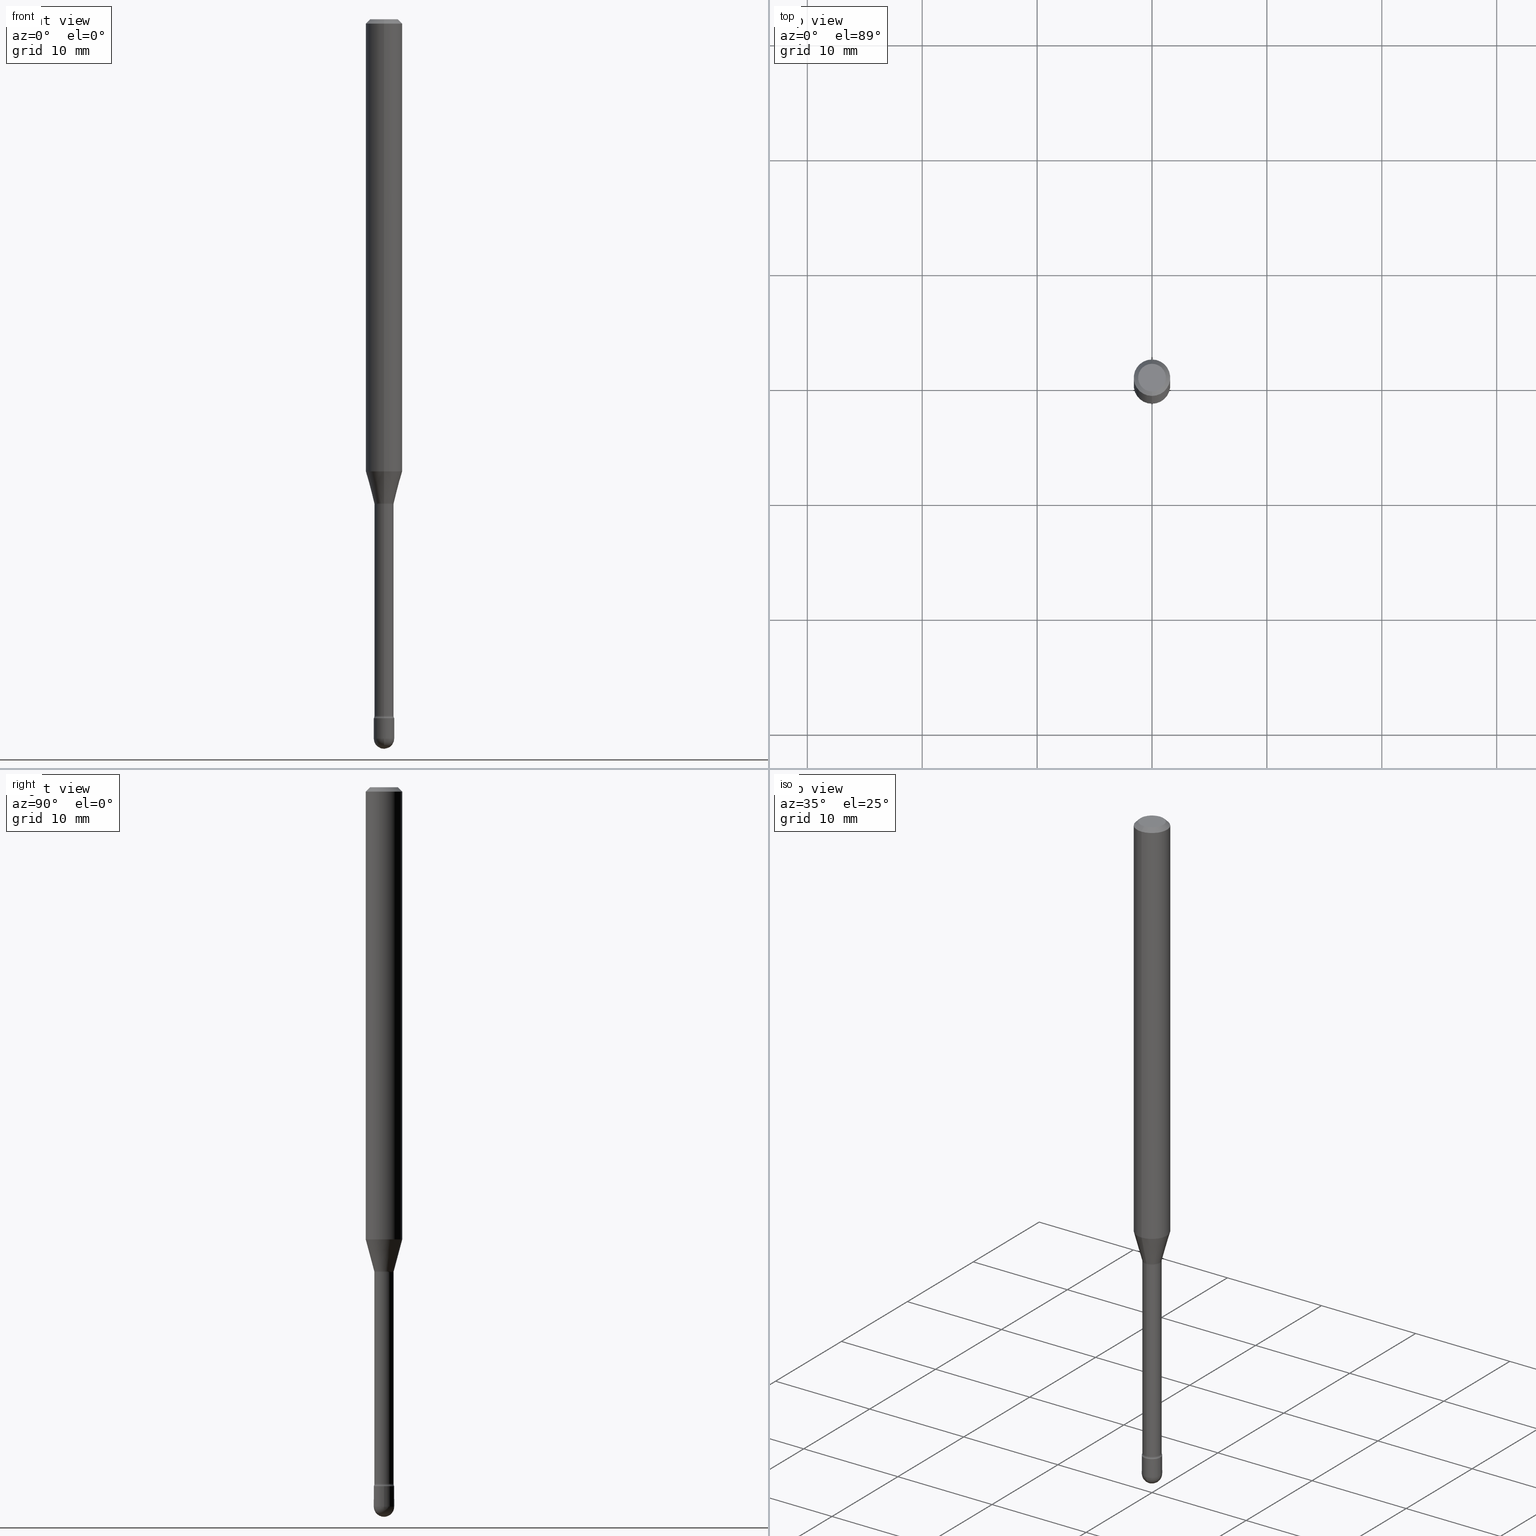
[diagram: canonical four-view strip — front | top / right | iso, engineering-drawing reading convention]
A machine part, canonical four-view strip (front | top / right | iso — engineering-drawing reading convention). The complete STEP part file that produces these views, byte-faithful:
ISO-10303-21;
HEADER;
FILE_DESCRIPTION (( 'STEP AP203' ),
    '1' );
FILE_NAME ('03901.STEP',
    '2024-04-09T21:03:07',
    ( '' ),
    ( '' ),
    'SwSTEP 2.0',
    'SolidWorks 2023',
    '' );
FILE_SCHEMA (( 'CONFIG_CONTROL_DESIGN' ));
ENDSEC;

DATA;
#1 = CARTESIAN_POINT ( 'NONE',  ( 3.668246001070409676E-31, -5.237160727982065186E-17, -0.01500000000000008271 ) ) ;
#2 = ORIENTED_EDGE ( 'NONE', *, *, #564, .F. ) ;
#3 = AXIS2_PLACEMENT_3D ( 'NONE', #226, #474, #356 ) ;
#4 = FACE_OUTER_BOUND ( 'NONE', #443, .T. ) ;
#5 = VERTEX_POINT ( 'NONE', #10 ) ;
#6 = EDGE_CURVE ( 'NONE', #183, #125, #526, .T. ) ;
#7 = CYLINDRICAL_SURFACE ( 'NONE', #113, 0.03500000000000000333 ) ;
#8 = ORIENTED_EDGE ( 'NONE', *, *, #414, .T. ) ;
#9 = CARTESIAN_POINT ( 'NONE',  ( -2.297394720958201714E-16, -0.03290000000000839475, -2.387345589506696175 ) ) ;
#10 = CARTESIAN_POINT ( 'NONE',  ( 2.486899575160936616E-16, 0.03499999999999166278, -2.395000000000000018 ) ) ;
#11 = CARTESIAN_POINT ( 'NONE',  ( 4.054860792723976153E-29, -5.789131289147861430E-15, -1.658092501787273410 ) ) ;
#12 = PRODUCT_DEFINITION_FORMATION_WITH_SPECIFIED_SOURCE ( 'ANY', '', #197, .NOT_KNOWN. ) ;
#13 = DIRECTION ( 'NONE',  ( 1.000000000000000000, -6.982962677686265922E-15, 4.876176775795936353E-29 ) ) ;
#14 = DIRECTION ( 'NONE',  ( 1.000000000000000000, -7.105427357601001070E-15, 4.926315008230735638E-29 ) ) ;
#15 = EDGE_LOOP ( 'NONE', ( #448, #452 ) ) ;
#16 = ADVANCED_FACE ( 'NONE', ( #106 ), #244, .T. ) ;
#17 = CARTESIAN_POINT ( 'NONE',  ( 3.789374653624952942E-29, -5.410096300461916682E-15, -1.549531296095961519 ) ) ;
#18 = CARTESIAN_POINT ( 'NONE',  ( 5.856966115042389501E-29, -8.361999962344650611E-15, -2.395000000000000018 ) ) ;
#19 = AXIS2_PLACEMENT_3D ( 'NONE', #546, #450, #100 ) ;
#20 = PERSON_AND_ORGANIZATION ( #313, #325 ) ;
#21 = AXIS2_PLACEMENT_3D ( 'NONE', #490, #375, #541 ) ;
#22 = LINE ( 'NONE', #293, #342 ) ;
#23 = EDGE_CURVE ( 'NONE', #374, #5, #294, .T. ) ;
#24 = DIRECTION ( 'NONE',  ( 1.000000000000000000, -6.982962677686276966E-15, 0.000000000000000000 ) ) ;
#25 = DATE_TIME_ROLE ( 'creation_date' ) ;
#26 = DIRECTION ( 'NONE',  ( -2.445497334046926588E-29, 3.491440485321357579E-15, 1.000000000000000000 ) ) ;
#27 = DIRECTION ( 'NONE',  ( -6.982962677686267499E-15, -1.000000000000000000, 0.000000000000000000 ) ) ;
#28 = FACE_OUTER_BOUND ( 'NONE', #376, .T. ) ;
#29 = VECTOR ( 'NONE', #55, 39.37007874015748143 ) ;
#30 = PERSON_AND_ORGANIZATION_ROLE ( 'creator' ) ;
#31 = CARTESIAN_POINT ( 'NONE',  ( -1.169113584055446105E-44, 1.669184350826100908E-30, 4.780733988912460139E-16 ) ) ;
#32 = DIRECTION ( 'NONE',  ( -2.445497334046926588E-29, 3.491440485321357579E-15, 1.000000000000000000 ) ) ;
#33 = CARTESIAN_POINT ( 'NONE',  ( 5.856966115042389501E-29, -8.361999962344650611E-15, -2.395000000000000018 ) ) ;
#34 = CIRCLE ( 'NONE', #370, 0.03500000000000000333 ) ;
#35 = ORIENTED_EDGE ( 'NONE', *, *, #534, .F. ) ;
#36 = APPROVAL_STATUS ( 'not_yet_approved' ) ;
#37 = EDGE_CURVE ( 'NONE', #438, #183, #76, .T. ) ;
#38 = CARTESIAN_POINT ( 'NONE',  ( 4.064307499408922751E-29, -5.802753956057700708E-15, -1.661974787463811332 ) ) ;
#39 = EDGE_LOOP ( 'NONE', ( #317, #230, #218, #44 ) ) ;
#40 = DIRECTION ( 'NONE',  ( 1.000000000000000000, -6.982962677686248567E-15, 0.000000000000000000 ) ) ;
#41 = ORIENTED_EDGE ( 'NONE', *, *, #98, .F. ) ;
#42 = DATE_AND_TIME ( #304, #500 ) ;
#43 = CARTESIAN_POINT ( 'NONE',  ( -2.297394720958783499E-16, -0.03290000000000003338, 5.929417908583188261E-16 ) ) ;
#44 = ORIENTED_EDGE ( 'NONE', *, *, #298, .F. ) ;
#45 = AXIS2_PLACEMENT_3D ( 'NONE', #204, #347, #67 ) ;
#46 = VECTOR ( 'NONE', #168, 39.37007874015748143 ) ;
#47 = DIRECTION ( 'NONE',  ( -6.982962677686266711E-15, -1.000000000000000000, 0.000000000000000000 ) ) ;
#48 = ADVANCED_FACE ( 'NONE', ( #154 ), #297, .T. ) ;
#49 = EDGE_LOOP ( 'NONE', ( #314, #495 ) ) ;
#50 = DIRECTION ( 'NONE',  ( -2.445468806185136597E-29, 3.491481338843145583E-15, 1.000000000000000000 ) ) ;
#51 = EDGE_LOOP ( 'NONE', ( #269, #456, #461, #502 ) ) ;
#52 = PLANE ( 'NONE',  #189 ) ;
#53 = VERTEX_POINT ( 'NONE', #378 ) ;
#54 = AXIS2_PLACEMENT_3D ( 'NONE', #137, #360, #484 ) ;
#55 = DIRECTION ( 'NONE',  ( -2.445468806185136877E-29, 3.491481338843145188E-15, 1.000000000000000000 ) ) ;
#56 = EDGE_CURVE ( 'NONE', #83, #221, #301, .T. ) ;
#57 = ORIENTED_EDGE ( 'NONE', *, *, #364, .F. ) ;
#58 = CARTESIAN_POINT ( 'NONE',  ( -0.03500000000000000333, 2.486899575160350887E-16, -1.721627281589217108E-30 ) ) ;
#59 = ORIENTED_EDGE ( 'NONE', *, *, #185, .F. ) ;
#60 = CARTESIAN_POINT ( 'NONE',  ( -3.344839122611314876E-16, -0.04790000000000579905, -1.661974787463811110 ) ) ;
#61 = CARTESIAN_POINT ( 'NONE',  ( 4.064354911995957945E-29, -5.802686058534508984E-15, -1.661974787463811332 ) ) ;
#62 = CIRCLE ( 'NONE', #159, 0.03341111260566397706 ) ;
#63 = VECTOR ( 'NONE', #115, 39.37007874015748854 ) ;
#64 = LOCAL_TIME ( 17, 3, 7.000000000000000000, #299 ) ;
#65 = FACE_OUTER_BOUND ( 'NONE', #273, .T. ) ;
#66 = PERSON_AND_ORGANIZATION_ROLE ( 'creator' ) ;
#67 = DIRECTION ( 'NONE',  ( 6.982962677686265922E-15, 1.000000000000000000, 0.000000000000000000 ) ) ;
#68 = ADVANCED_FACE ( 'NONE', ( #65 ), #303, .T. ) ;
#69 = APPROVAL_ROLE ( '' ) ;
#70 = CARTESIAN_POINT ( 'NONE',  ( -2.486899575159748395E-16, -0.03500000000000861450, -2.464999999999999858 ) ) ;
#71 = APPLICATION_CONTEXT ( 'configuration controlled 3d designs of mechanical parts and assemblies' ) ;
#72 = DIMENSIONAL_EXPONENTS ( 1.000000000000000000, 0.000000000000000000, 0.000000000000000000, 0.000000000000000000, 0.000000000000000000, 0.000000000000000000, 0.000000000000000000 ) ;
#73 = ADVANCED_FACE ( 'NONE', ( #341 ), #383, .T. ) ;
#74 = APPROVAL_STATUS ( 'not_yet_approved' ) ;
#75 = CARTESIAN_POINT ( 'NONE',  ( 4.054860792723976153E-29, -5.789131289147861430E-15, -1.658092501787273410 ) ) ;
#76 = CIRCLE ( 'NONE', #19, 0.03500000000000000333 ) ;
#77 = AXIS2_PLACEMENT_3D ( 'NONE', #11, #330, #47 ) ;
#78 = LINE ( 'NONE', #43, #46 ) ;
#79 = FACE_OUTER_BOUND ( 'NONE', #80, .T. ) ;
#80 = EDGE_LOOP ( 'NONE', ( #421, #91, #372, #305 ) ) ;
#81 = DIRECTION ( 'NONE',  ( -6.982962677686265922E-15, -1.000000000000000000, 3.491440485321357579E-15 ) ) ;
#82 = CLOSED_SHELL ( 'NONE', ( #225, #320, #550, #232, #68, #118, #517, #202, #242, #144, #527, #259, #73, #222 ) ) ;
#83 = VERTEX_POINT ( 'NONE', #557 ) ;
#84 = CIRCLE ( 'NONE', #498, 0.04749999999999999362 ) ;
#85 = CARTESIAN_POINT ( 'NONE',  ( -4.287811248607203282E-16, -0.06250000000000005551, -0.01499999999999986587 ) ) ;
#86 = ORIENTED_EDGE ( 'NONE', *, *, #458, .T. ) ;
#87 = APPROVAL_ROLE ( '' ) ;
#88 = DIRECTION ( 'NONE',  ( -2.445497334046926588E-29, 3.491440485321357579E-15, 1.000000000000000000 ) ) ;
#89 = ORIENTED_EDGE ( 'NONE', *, *, #56, .T. ) ;
#90 = DIRECTION ( 'NONE',  ( -6.982962677686266711E-15, -1.000000000000000000, 3.491440485321357973E-15 ) ) ;
#91 = ORIENTED_EDGE ( 'NONE', *, *, #460, .F. ) ;
#92 = VECTOR ( 'NONE', #346, 39.37007874015748143 ) ;
#93 = APPROVAL ( #203, 'UNSPECIFIED' ) ;
#94 = CIRCLE ( 'NONE', #178, 0.01500000000000002720 ) ;
#95 = APPROVAL_PERSON_ORGANIZATION ( #473, #193, #87 ) ;
#96 = DIRECTION ( 'NONE',  ( 1.000000000000000000, -6.982962677686248567E-15, 0.000000000000000000 ) ) ;
#97 = DIRECTION ( 'NONE',  ( -2.445497334046926588E-29, 3.491440485321357579E-15, 1.000000000000000000 ) ) ;
#98 = EDGE_CURVE ( 'NONE', #331, #143, #514, .T. ) ;
#99 = CARTESIAN_POINT ( 'NONE',  ( 0.03500000000000000333, -8.606501500248353382E-15, -2.395000000000000018 ) ) ;
#100 = DIRECTION ( 'NONE',  ( 1.000000000000000000, -6.982962677686248567E-15, 0.000000000000000000 ) ) ;
#101 = EDGE_CURVE ( 'NONE', #170, #83, #552, .T. ) ;
#102 = DIRECTION ( 'NONE',  ( -2.445468806185136597E-29, 3.491481338843145583E-15, 1.000000000000000000 ) ) ;
#103 = EDGE_LOOP ( 'NONE', ( #363, #566, #138, #404 ) ) ;
#104 = VECTOR ( 'NONE', #287, 39.37007874015748854 ) ;
#105 = CARTESIAN_POINT ( 'NONE',  ( -4.364351673553916201E-16, -0.06250000000000000000, 6.962884292238308873E-16 ) ) ;
#106 = FACE_OUTER_BOUND ( 'NONE', #475, .T. ) ;
#107 = APPLICATION_PROTOCOL_DEFINITION ( 'international standard', 'config_control_design', 1994, #153 ) ;
#108 = EDGE_CURVE ( 'NONE', #409, #488, #22, .T. ) ;
#109 = EDGE_LOOP ( 'NONE', ( #195, #263, #543, #41 ) ) ;
#110 = PERSON_AND_ORGANIZATION ( #313, #325 ) ;
#111 = PLANE ( 'NONE',  #454 ) ;
#112 =( LENGTH_UNIT ( ) NAMED_UNIT ( * ) SI_UNIT ( $, .METRE. ) );
#113 = AXIS2_PLACEMENT_3D ( 'NONE', #369, #50, #412 ) ;
#114 = CARTESIAN_POINT ( 'NONE',  ( 5.856897790813402508E-29, -8.362097806529333416E-15, -2.395000000000000018 ) ) ;
#115 = DIRECTION ( 'NONE',  ( -1.807323732225325406E-15, -0.2588190451025175198, 0.9659258262890690894 ) ) ;
#116 = DIRECTION ( 'NONE',  ( -6.982962677686266711E-15, -1.000000000000000000, 0.000000000000000000 ) ) ;
#117 = EDGE_CURVE ( 'NONE', #221, #83, #214, .T. ) ;
#118 = ADVANCED_FACE ( 'NONE', ( #119 ), #176, .T. ) ;
#119 = FACE_OUTER_BOUND ( 'NONE', #491, .T. ) ;
#120 = MANIFOLD_SOLID_BREP ( 'Body-Move/Copy2[1]', #167 ) ;
#121 = CARTESIAN_POINT ( 'NONE',  ( 4.364351673553919652E-16, 0.06249999999999995143, -0.01500000000000030129 ) ) ;
#122 = TOROIDAL_SURFACE ( 'NONE', #216, 0.04789999999999999813, 0.01500000000000002373 ) ;
#123 = DIRECTION ( 'NONE',  ( 6.982962677686265922E-15, 1.000000000000000000, 0.000000000000000000 ) ) ;
#124 = EDGE_CURVE ( 'NONE', #241, #146, #62, .T. ) ;
#125 = VERTEX_POINT ( 'NONE', #70 ) ;
#126 = CC_DESIGN_PERSON_AND_ORGANIZATION_ASSIGNMENT ( #252, #248, ( #197 ) ) ;
#127 = COORDINATED_UNIVERSAL_TIME_OFFSET ( 5, 0, .BEHIND. ) ;
#128 = DIRECTION ( 'NONE',  ( 2.445497334046926588E-29, -3.491440485321357579E-15, -1.000000000000000000 ) ) ;
#129 = ORIENTED_EDGE ( 'NONE', *, *, #279, .T. ) ;
#130 = CYLINDRICAL_SURFACE ( 'NONE', #516, 0.06250000000000000000 ) ;
#131 = AXIS2_PLACEMENT_3D ( 'NONE', #385, #511, #365 ) ;
#132 = ORIENTED_EDGE ( 'NONE', *, *, #37, .T. ) ;
#133 = PRODUCT_DEFINITION_SHAPE ( 'NONE', 'NONE',  #308 ) ;
#134 = SECURITY_CLASSIFICATION_LEVEL ( 'unclassified' ) ;
#135 = DIRECTION ( 'NONE',  ( -1.000000000000000000, 7.105427357601001070E-15, -4.926315508542082329E-29 ) ) ;
#136 = ORIENTED_EDGE ( 'NONE', *, *, #124, .T. ) ;
#137 = CARTESIAN_POINT ( 'NONE',  ( 6.028080607246362204E-29, -8.606501500248354960E-15, -2.464999999999999858 ) ) ;
#138 = ORIENTED_EDGE ( 'NONE', *, *, #219, .F. ) ;
#139 = DIRECTION ( 'NONE',  ( -2.445497334046926869E-29, 3.491440485321357184E-15, 1.000000000000000000 ) ) ;
#140 = DIRECTION ( 'NONE',  ( -2.445468806185136597E-29, 3.491481338843145583E-15, 1.000000000000000000 ) ) ;
#141 = AXIS2_PLACEMENT_3D ( 'NONE', #173, #32, #529 ) ;
#142 = LINE ( 'NONE', #58, #29 ) ;
#143 = VERTEX_POINT ( 'NONE', #381 ) ;
#144 = ADVANCED_FACE ( 'NONE', ( #258 ), #164, .F. ) ;
#145 = DIRECTION ( 'NONE',  ( -2.445497334046926588E-29, 3.491440485321357579E-15, 1.000000000000000000 ) ) ;
#146 = VERTEX_POINT ( 'NONE', #505 ) ;
#147 = DIRECTION ( 'NONE',  ( 1.000000000000000000, -6.982962677686276966E-15, 0.000000000000000000 ) ) ;
#148 = CARTESIAN_POINT ( 'NONE',  ( 6.028080607246362204E-29, -8.606501500248354960E-15, -2.464999999999999858 ) ) ;
#149 = VECTOR ( 'NONE', #507, 39.37007874015748143 ) ;
#150 = CIRCLE ( 'NONE', #408, 0.03500000000000001721 ) ;
#151 = ADVANCED_FACE ( 'NONE', ( #28 ), #111, .T. ) ;
#152 = CALENDAR_DATE ( 2024, 9, 4 ) ;
#153 = APPLICATION_CONTEXT ( 'configuration controlled 3d designs of mechanical parts and assemblies' ) ;
#154 = FACE_OUTER_BOUND ( 'NONE', #103, .T. ) ;
#155 = DIRECTION ( 'NONE',  ( 1.000000000000000000, 0.000000000000000000, 0.000000000000000000 ) ) ;
#156 = DIRECTION ( 'NONE',  ( -2.438088387897960049E-29, 3.491481338843145188E-15, 1.000000000000000000 ) ) ;
#157 = CARTESIAN_POINT ( 'NONE',  ( 0.000000000000000000, 0.000000000000000000, 0.000000000000000000 ) ) ;
#158 = DIRECTION ( 'NONE',  ( -6.982962677686265922E-15, -1.000000000000000000, 3.491440485321357973E-15 ) ) ;
#159 = AXIS2_PLACEMENT_3D ( 'NONE', #556, #245, #212 ) ;
#160 = AXIS2_PLACEMENT_3D ( 'NONE', #523, #175, #311 ) ;
#161 = EDGE_CURVE ( 'NONE', #53, #331, #310, .T. ) ;
#162 = DIRECTION ( 'NONE',  ( 6.982962677686265922E-15, 1.000000000000000000, -3.491440485321357184E-15 ) ) ;
#163 = MECHANICAL_CONTEXT ( 'NONE', #153, 'mechanical' ) ;
#164 = PLANE ( 'NONE',  #537 ) ;
#165 = ORIENTED_EDGE ( 'NONE', *, *, #390, .T. ) ;
#166 = DIRECTION ( 'NONE',  ( -2.445468806185136877E-29, 3.491481338843145188E-15, 1.000000000000000000 ) ) ;
#167 = CLOSED_SHELL ( 'NONE', ( #16, #206, #151, #48, #340 ) ) ;
#168 = DIRECTION ( 'NONE',  ( -2.445497334046926869E-29, 3.491440485321357184E-15, 1.000000000000000000 ) ) ;
#169 = CONICAL_SURFACE ( 'NONE', #77, 0.03341111260566397706, 0.2617993877991495744 ) ;
#170 = VERTEX_POINT ( 'NONE', #470 ) ;
#171 = FACE_OUTER_BOUND ( 'NONE', #109, .T. ) ;
#172 = ORIENTED_EDGE ( 'NONE', *, *, #424, .F. ) ;
#173 = CARTESIAN_POINT ( 'NONE',  ( 4.064307499408922751E-29, -5.802753956057700708E-15, -1.661974787463811332 ) ) ;
#174 = VERTEX_POINT ( 'NONE', #296 ) ;
#175 = DIRECTION ( 'NONE',  ( 1.000000000000000000, -7.105427357601001070E-15, 4.926315008230735638E-29 ) ) ;
#176 = CONICAL_SURFACE ( 'NONE', #416, 0.03341111260566397706, 0.2617993877991495744 ) ;
#177 = ORIENTED_EDGE ( 'NONE', *, *, #414, .F. ) ;
#178 = AXIS2_PLACEMENT_3D ( 'NONE', #319, #410, #446 ) ;
#179 = SECURITY_CLASSIFICATION ( '', '', #134 ) ;
#180 = CARTESIAN_POINT ( 'NONE',  ( 5.838179168722291637E-29, -8.335372575132118350E-15, -2.387345589506696175 ) ) ;
#181 = ORIENTED_EDGE ( 'NONE', *, *, #37, .F. ) ;
#182 = DIRECTION ( 'NONE',  ( -6.982962677686265922E-15, -1.000000000000000000, 3.491440485321357184E-15 ) ) ;
#183 = VERTEX_POINT ( 'NONE', #467 ) ;
#184 = EDGE_CURVE ( 'NONE', #267, #488, #34, .T. ) ;
#185 = EDGE_CURVE ( 'NONE', #271, #255, #439, .T. ) ;
#186 = LINE ( 'NONE', #539, #295 ) ;
#187 = ORIENTED_EDGE ( 'NONE', *, *, #219, .T. ) ;
#188 = AXIS2_PLACEMENT_3D ( 'NONE', #429, #26, #207 ) ;
#189 = AXIS2_PLACEMENT_3D ( 'NONE', #373, #229, #182 ) ;
#190 = DIRECTION ( 'NONE',  ( -2.445497334046926588E-29, 3.491440485321357579E-15, 1.000000000000000000 ) ) ;
#191 = ORIENTED_EDGE ( 'NONE', *, *, #231, .T. ) ;
#192 = ADVANCED_BREP_SHAPE_REPRESENTATION ( '03901', ( #120, #318, #509 ), #286 ) ;
#193 = APPROVAL ( #36, 'UNSPECIFIED' ) ;
#194 = CARTESIAN_POINT ( 'NONE',  ( 3.840629472727447874E-16, 0.04749999999999999362, -2.485923956665947867E-16 ) ) ;
#195 = ORIENTED_EDGE ( 'NONE', *, *, #161, .F. ) ;
#196 = EDGE_CURVE ( 'NONE', #143, #174, #237, .T. ) ;
#197 = PRODUCT ( '03901', '03901', '', ( #163 ) ) ;
#198 = CARTESIAN_POINT ( 'NONE',  ( 5.838247274587313362E-29, -8.335275043657060680E-15, -2.387345589506696175 ) ) ;
#199 = ORIENTED_EDGE ( 'NONE', *, *, #390, .F. ) ;
#200 = CIRCLE ( 'NONE', #545, 0.03500000000000000333 ) ;
#201 = DIRECTION ( 'NONE',  ( -2.445497334046926588E-29, 3.491440485321357579E-15, 1.000000000000000000 ) ) ;
#202 = ADVANCED_FACE ( 'NONE', ( #559 ), #130, .T. ) ;
#203 = APPROVAL_STATUS ( 'not_yet_approved' ) ;
#204 = CARTESIAN_POINT ( 'NONE',  ( 6.028080607246362204E-29, -8.606501500248354960E-15, -2.464999999999999858 ) ) ;
#205 = UNCERTAINTY_MEASURE_WITH_UNIT (LENGTH_MEASURE( 1.000000000000000082E-05 ), #547, 'distance_accuracy_value', 'NONE');
#206 = ADVANCED_FACE ( 'NONE', ( #401 ), #518, .T. ) ;
#207 = DIRECTION ( 'NONE',  ( -6.982962677686265922E-15, -1.000000000000000000, 4.370956789862821150E-15 ) ) ;
#208 =( NAMED_UNIT ( * ) SI_UNIT ( $, .STERADIAN. ) SOLID_ANGLE_UNIT ( ) );
#209 = TOROIDAL_SURFACE ( 'NONE', #228, 0.04790000000000008834, 0.01500000000000002547 ) ;
#210 = DIRECTION ( 'NONE',  ( -2.445497334046926588E-29, 3.491440485321357579E-15, 1.000000000000000000 ) ) ;
#211 = FACE_OUTER_BOUND ( 'NONE', #51, .T. ) ;
#212 = DIRECTION ( 'NONE',  ( -6.982962677686266711E-15, -1.000000000000000000, 0.000000000000000000 ) ) ;
#213 = CARTESIAN_POINT ( 'NONE',  ( -0.03500000000000000333, -8.235609695872808902E-15, -2.395000000000000018 ) ) ;
#214 = CIRCLE ( 'NONE', #463, 0.03289999999999999869 ) ;
#215 = CC_DESIGN_PERSON_AND_ORGANIZATION_ASSIGNMENT ( #400, #315, ( #12 ) ) ;
#216 = AXIS2_PLACEMENT_3D ( 'NONE', #38, #223, #354 ) ;
#217 = LOCAL_TIME ( 17, 3, 7.000000000000000000, #127 ) ;
#218 = ORIENTED_EDGE ( 'NONE', *, *, #117, .F. ) ;
#219 = EDGE_CURVE ( 'NONE', #409, #438, #200, .T. ) ;
#220 = CARTESIAN_POINT ( 'NONE',  ( 4.440892098501002843E-16, 0.06249999999999455991, -1.549531296095961963 ) ) ;
#221 = VERTEX_POINT ( 'NONE', #562 ) ;
#222 = ADVANCED_FACE ( 'NONE', ( #262 ), #464, .F. ) ;
#223 = DIRECTION ( 'NONE',  ( -2.445497334046926588E-29, 3.491440485321357579E-15, 1.000000000000000000 ) ) ;
#224 = EDGE_LOOP ( 'NONE', ( #234, #328, #525, #357 ) ) ;
#225 = ADVANCED_FACE ( 'NONE', ( #4 ), #122, .F. ) ;
#226 = CARTESIAN_POINT ( 'NONE',  ( 3.668246001070409676E-31, -5.237160727982065186E-17, -0.01500000000000008271 ) ) ;
#227 = EDGE_LOOP ( 'NONE', ( #355, #276, #418, #482 ) ) ;
#228 = AXIS2_PLACEMENT_3D ( 'NONE', #180, #440, #81 ) ;
#229 = DIRECTION ( 'NONE',  ( -2.445497334046926308E-29, 3.491440485321357184E-15, 1.000000000000000000 ) ) ;
#230 = ORIENTED_EDGE ( 'NONE', *, *, #101, .T. ) ;
#231 = EDGE_CURVE ( 'NONE', #398, #125, #150, .T. ) ;
#232 = ADVANCED_FACE ( 'NONE', ( #171 ), #302, .T. ) ;
#233 = DIRECTION ( 'NONE',  ( -2.445468806185136597E-29, 3.491481338843145583E-15, 1.000000000000000000 ) ) ;
#234 = ORIENTED_EDGE ( 'NONE', *, *, #279, .F. ) ;
#235 = CARTESIAN_POINT ( 'NONE',  ( 6.115168556468905002E-29, -8.726560215209356888E-15, -2.500000000000000000 ) ) ;
#236 = ORIENTED_EDGE ( 'NONE', *, *, #444, .F. ) ;
#237 = CIRCLE ( 'NONE', #131, 0.06250000000000000000 ) ;
#238 = VECTOR ( 'NONE', #139, 39.37007874015748143 ) ;
#239 = DIRECTION ( 'NONE',  ( -2.445497334046926869E-29, 3.491440485321357184E-15, 1.000000000000000000 ) ) ;
#240 = EDGE_CURVE ( 'NONE', #5, #374, #371, .T. ) ;
#241 = VERTEX_POINT ( 'NONE', #316 ) ;
#242 = ADVANCED_FACE ( 'NONE', ( #79 ), #538, .T. ) ;
#243 = CARTESIAN_POINT ( 'NONE',  ( 0.03500000000000000333, -8.728703347107863365E-15, -2.464999999999999858 ) ) ;
#244 = CYLINDRICAL_SURFACE ( 'NONE', #553, 0.03500000000000000333 ) ;
#245 = DIRECTION ( 'NONE',  ( -2.445497334046926588E-29, 3.491440485321357579E-15, 1.000000000000000000 ) ) ;
#246 = AXIS2_PLACEMENT_3D ( 'NONE', #148, #499, #493 ) ;
#247 = AXIS2_PLACEMENT_3D ( 'NONE', #322, #145, #415 ) ;
#248 = PERSON_AND_ORGANIZATION_ROLE ( 'design_owner' ) ;
#249 = DIRECTION ( 'NONE',  ( -6.982962677686266711E-15, -1.000000000000000000, 3.491440485321357973E-15 ) ) ;
#250 = DIRECTION ( 'NONE',  ( 7.105427357600997914E-15, 1.000000000000000000, 0.000000000000000000 ) ) ;
#251 = DIRECTION ( 'NONE',  ( -2.445497334046926588E-29, 3.491440485321357579E-15, 1.000000000000000000 ) ) ;
#252 = PERSON_AND_ORGANIZATION ( #313, #325 ) ;
#253 = CARTESIAN_POINT ( 'NONE',  ( 4.064354911995957945E-29, -5.802686058534508984E-15, -1.661974787463811332 ) ) ;
#254 = CC_DESIGN_DATE_AND_TIME_ASSIGNMENT ( #264, #483, ( #179 ) ) ;
#255 = VERTEX_POINT ( 'NONE', #403 ) ;
#256 = APPLICATION_PROTOCOL_DEFINITION ( 'international standard', 'config_control_design', 1994, #71 ) ;
#257 = CIRCLE ( 'NONE', #447, 0.03500000000000000333 ) ;
#258 = FACE_OUTER_BOUND ( 'NONE', #49, .T. ) ;
#259 = ADVANCED_FACE ( 'NONE', ( #531 ), #209, .F. ) ;
#260 = CARTESIAN_POINT ( 'NONE',  ( 6.028080607246362204E-29, -8.606501500248354960E-15, -2.464999999999999858 ) ) ;
#261 = CC_DESIGN_DATE_AND_TIME_ASSIGNMENT ( #389, #25, ( #308 ) ) ;
#262 = FACE_OUTER_BOUND ( 'NONE', #224, .T. ) ;
#263 = ORIENTED_EDGE ( 'NONE', *, *, #288, .T. ) ;
#264 = DATE_AND_TIME ( #359, #217 ) ;
#265 = AXIS2_PLACEMENT_3D ( 'NONE', #395, #468, #513 ) ;
#266 = CARTESIAN_POINT ( 'NONE',  ( -1.169113584055446105E-44, 1.669184350826100908E-30, 4.780733988912460139E-16 ) ) ;
#267 = VERTEX_POINT ( 'NONE', #213 ) ;
#268 = DIRECTION ( 'NONE',  ( -2.445468806185136597E-29, 3.491481338843145583E-15, 1.000000000000000000 ) ) ;
#269 = ORIENTED_EDGE ( 'NONE', *, *, #332, .F. ) ;
#270 = DIRECTION ( 'NONE',  ( 6.982962677686265922E-15, 1.000000000000000000, -3.483106191921935554E-15 ) ) ;
#271 = VERTEX_POINT ( 'NONE', #220 ) ;
#272 = CARTESIAN_POINT ( 'NONE',  ( -2.444036937189609493E-16, -0.03500000000000837858, -2.395000000000000018 ) ) ;
#273 = EDGE_LOOP ( 'NONE', ( #324, #8, #278, #172 ) ) ;
#274 = CIRCLE ( 'NONE', #54, 0.03500000000000001721 ) ;
#275 = DIRECTION ( 'NONE',  ( -2.445497334046926588E-29, 3.491440485321357579E-15, 1.000000000000000000 ) ) ;
#276 = ORIENTED_EDGE ( 'NONE', *, *, #332, .T. ) ;
#277 = FACE_OUTER_BOUND ( 'NONE', #459, .T. ) ;
#278 = ORIENTED_EDGE ( 'NONE', *, *, #524, .F. ) ;
#279 = EDGE_CURVE ( 'NONE', #241, #83, #312, .T. ) ;
#280 = DIRECTION ( 'NONE',  ( -2.445497334046926588E-29, 3.491440485321357579E-15, 1.000000000000000000 ) ) ;
#281 = ORIENTED_EDGE ( 'NONE', *, *, #392, .F. ) ;
#282 = LOCAL_TIME ( 17, 3, 7.000000000000000000, #380 ) ;
#283 = AXIS2_PLACEMENT_3D ( 'NONE', #300, #339, #249 ) ;
#284 = AXIS2_PLACEMENT_3D ( 'NONE', #198, #544, #535 ) ;
#285 = EDGE_CURVE ( 'NONE', #398, #438, #274, .T. ) ;
#286 =( GEOMETRIC_REPRESENTATION_CONTEXT ( 3 ) GLOBAL_UNCERTAINTY_ASSIGNED_CONTEXT ( ( #205 ) ) GLOBAL_UNIT_ASSIGNED_CONTEXT ( ( #547, #510, #208 ) ) REPRESENTATION_CONTEXT ( 'NONE', 'WORKASPACE' ) );
#287 = DIRECTION ( 'NONE',  ( 1.839019923739595582E-15, 0.2588190451025242922, 0.9659258262890673130 ) ) ;
#288 = EDGE_CURVE ( 'NONE', #53, #174, #481, .T. ) ;
#289 = CARTESIAN_POINT ( 'NONE',  ( 0.000000000000000000, 0.000000000000000000, 0.000000000000000000 ) ) ;
#290 = APPROVAL_DATE_TIME ( #336, #326 ) ;
#291 = EDGE_LOOP ( 'NONE', ( #35, #337, #86, #352 ) ) ;
#292 = DIRECTION ( 'NONE',  ( -2.445497334046926588E-29, 3.491440485321357579E-15, 1.000000000000000000 ) ) ;
#293 = CARTESIAN_POINT ( 'NONE',  ( 0.03500000000000000333, -2.444036937190193250E-16, 1.706661871528577808E-30 ) ) ;
#294 = CIRCLE ( 'NONE', #388, 0.03500000000000000333 ) ;
#295 = VECTOR ( 'NONE', #239, 39.37007874015748143 ) ;
#296 = CARTESIAN_POINT ( 'NONE',  ( -4.364351673553912750E-16, -0.06250000000000005551, -0.01499999999999986587 ) ) ;
#297 = SPHERICAL_SURFACE ( 'NONE', #45, 0.03500000000000001721 ) ;
#298 = EDGE_CURVE ( 'NONE', #368, #221, #78, .T. ) ;
#299 = COORDINATED_UNIVERSAL_TIME_OFFSET ( 5, 0, .BEHIND. ) ;
#300 = CARTESIAN_POINT ( 'NONE',  ( 2.023760303340932204E-45, -2.888935821206575184E-31, -8.274897261383033720E-17 ) ) ;
#301 = CIRCLE ( 'NONE', #348, 0.03289999999999999869 ) ;
#302 = CONICAL_SURFACE ( 'NONE', #3, 0.06250000000000000000, 0.7853981633974483900 ) ;
#303 = CYLINDRICAL_SURFACE ( 'NONE', #426, 0.06250000000000000000 ) ;
#304 = CALENDAR_DATE ( 2024, 9, 4 ) ;
#305 = ORIENTED_EDGE ( 'NONE', *, *, #196, .T. ) ;
#306 = DIRECTION ( 'NONE',  ( -6.982962677686265922E-15, -1.000000000000000000, 0.000000000000000000 ) ) ;
#307 = EDGE_LOOP ( 'NONE', ( #57, #413, #540, #536, #406 ) ) ;
#308 = PRODUCT_DEFINITION ( 'UNKNOWN', '', #12, #533 ) ;
#309 = CC_DESIGN_SECURITY_CLASSIFICATION ( #179, ( #12 ) ) ;
#310 = CIRCLE ( 'NONE', #283, 0.04749999999999999362 ) ;
#311 = DIRECTION ( 'NONE',  ( 7.105427357601001859E-15, 1.000000000000000000, 0.000000000000000000 ) ) ;
#312 = CIRCLE ( 'NONE', #160, 0.01500000000000001853 ) ;
#313 = PERSON ( 'UNSPECIFIED', 'UNSPECIFIED', 'UNSPECIFIED', ('UNSPECIFIED'), ('UNSPECIFIED'), ('UNSPECIFIED') ) ;
#314 = ORIENTED_EDGE ( 'NONE', *, *, #460, .T. ) ;
#315 = PERSON_AND_ORGANIZATION_ROLE ( 'design_supplier' ) ;
#316 = CARTESIAN_POINT ( 'NONE',  ( 3.407447217031568368E-16, 0.03341111260565819002, -1.658092501787273410 ) ) ;
#317 = ORIENTED_EDGE ( 'NONE', *, *, #430, .T. ) ;
#318 = MANIFOLD_SOLID_BREP ( 'Body-Move/Copy2[2]', #82 ) ;
#319 = CARTESIAN_POINT ( 'NONE',  ( -3.344839122611144285E-16, -0.04790000000000842195, -2.387345589506695731 ) ) ;
#320 = ADVANCED_FACE ( 'NONE', ( #351 ), #477, .T. ) ;
#321 = ORIENTED_EDGE ( 'NONE', *, *, #6, .F. ) ;
#322 = CARTESIAN_POINT ( 'NONE',  ( 5.838247274587313362E-29, -8.335275043657060680E-15, -2.387345589506696175 ) ) ;
#323 = CIRCLE ( 'NONE', #247, 0.03290000000000006114 ) ;
#324 = ORIENTED_EDGE ( 'NONE', *, *, #444, .T. ) ;
#325 = ORGANIZATION ( 'UNSPECIFIED', 'UNSPECIFIED', '' ) ;
#326 = APPROVAL ( #74, 'UNSPECIFIED' ) ;
#327 = CARTESIAN_POINT ( 'NONE',  ( 2.444036937190796729E-16, 0.03499999999999140604, -2.464999999999999858 ) ) ;
#328 = ORIENTED_EDGE ( 'NONE', *, *, #386, .F. ) ;
#329 = EDGE_CURVE ( 'NONE', #125, #409, #257, .T. ) ;
#330 = DIRECTION ( 'NONE',  ( -2.445497334046926588E-29, 3.491440485321357579E-15, 1.000000000000000000 ) ) ;
#331 = VERTEX_POINT ( 'NONE', #194 ) ;
#332 = EDGE_CURVE ( 'NONE', #170, #368, #528, .T. ) ;
#333 = CARTESIAN_POINT ( 'NONE',  ( 5.856897790813402508E-29, -8.362097806529333416E-15, -2.395000000000000018 ) ) ;
#334 = ORIENTED_EDGE ( 'NONE', *, *, #196, .F. ) ;
#335 = TOROIDAL_SURFACE ( 'NONE', #417, 0.04790000000000008834, 0.01500000000000002547 ) ;
#336 = DATE_AND_TIME ( #506, #64 ) ;
#337 = ORIENTED_EDGE ( 'NONE', *, *, #430, .F. ) ;
#338 = CALENDAR_DATE ( 2024, 9, 4 ) ;
#339 = DIRECTION ( 'NONE',  ( -2.445497334046926588E-29, 3.491440485321357579E-15, 1.000000000000000000 ) ) ;
#340 = ADVANCED_FACE ( 'NONE', ( #453 ), #7, .T. ) ;
#341 = FACE_OUTER_BOUND ( 'NONE', #227, .T. ) ;
#342 = VECTOR ( 'NONE', #166, 39.37007874015748143 ) ;
#343 = CIRCLE ( 'NONE', #554, 0.06250000000000000000 ) ;
#344 = DIRECTION ( 'NONE',  ( -2.445468806185136597E-29, 3.491481338843145583E-15, 1.000000000000000000 ) ) ;
#345 = PERSON_AND_ORGANIZATION ( #313, #325 ) ;
#346 = DIRECTION ( 'NONE',  ( 4.937700262164548042E-15, 0.7071067811865451302, -0.7071067811865499042 ) ) ;
#347 = DIRECTION ( 'NONE',  ( -1.000000000000000000, 6.982962677686265922E-15, -4.883557194083112340E-29 ) ) ;
#348 = AXIS2_PLACEMENT_3D ( 'NONE', #253, #201, #116 ) ;
#349 = AXIS2_PLACEMENT_3D ( 'NONE', #333, #102, #147 ) ;
#350 = APPROVAL_DATE_TIME ( #42, #193 ) ;
#351 = FACE_OUTER_BOUND ( 'NONE', #39, .T. ) ;
#352 = ORIENTED_EDGE ( 'NONE', *, *, #23, .T. ) ;
#353 = SHAPE_DEFINITION_REPRESENTATION ( #133, #192 ) ;
#354 = DIRECTION ( 'NONE',  ( -6.982962677686265133E-15, -1.000000000000000000, 3.491440485321357579E-15 ) ) ;
#355 = ORIENTED_EDGE ( 'NONE', *, *, #101, .F. ) ;
#356 = DIRECTION ( 'NONE',  ( 6.982962677686265922E-15, 1.000000000000000000, -3.483106191921935554E-15 ) ) ;
#357 = ORIENTED_EDGE ( 'NONE', *, *, #117, .T. ) ;
#358 = CC_DESIGN_APPROVAL ( #326, ( #12 ) ) ;
#359 = CALENDAR_DATE ( 2024, 9, 4 ) ;
#360 = DIRECTION ( 'NONE',  ( 1.000000000000000000, -6.982962677686265922E-15, 4.883557194083112340E-29 ) ) ;
#361 = CIRCLE ( 'NONE', #21, 0.03341111260566397706 ) ;
#362 = APPROVAL_PERSON_ORGANIZATION ( #20, #93, #69 ) ;
#363 = ORIENTED_EDGE ( 'NONE', *, *, #231, .F. ) ;
#364 = EDGE_CURVE ( 'NONE', #183, #267, #142, .T. ) ;
#365 = DIRECTION ( 'NONE',  ( -6.982962677686265922E-15, -1.000000000000000000, 3.483106191921935554E-15 ) ) ;
#366 = ORIENTED_EDGE ( 'NONE', *, *, #285, .F. ) ;
#367 = CARTESIAN_POINT ( 'NONE',  ( 3.403499704291468938E-16, 0.04789999999999175473, -2.387345589506696619 ) ) ;
#368 = VERTEX_POINT ( 'NONE', #9 ) ;
#369 = CARTESIAN_POINT ( 'NONE',  ( 0.000000000000000000, 0.000000000000000000, 0.000000000000000000 ) ) ;
#370 = AXIS2_PLACEMENT_3D ( 'NONE', #428, #344, #24 ) ;
#371 = CIRCLE ( 'NONE', #455, 0.03500000000000000333 ) ;
#372 = ORIENTED_EDGE ( 'NONE', *, *, #98, .T. ) ;
#373 = CARTESIAN_POINT ( 'NONE',  ( 2.444036937190778979E-16, 0.03499999999999164196, -2.395000000000000018 ) ) ;
#374 = VERTEX_POINT ( 'NONE', #272 ) ;
#375 = DIRECTION ( 'NONE',  ( -2.445497334046926588E-29, 3.491440485321357579E-15, 1.000000000000000000 ) ) ;
#376 = EDGE_LOOP ( 'NONE', ( #165, #563 ) ) ;
#377 = DIRECTION ( 'NONE',  ( -6.982962677686265922E-15, -1.000000000000000000, 4.370956789862821150E-15 ) ) ;
#378 = CARTESIAN_POINT ( 'NONE',  ( -3.773273898774340269E-16, -0.04749999999999999362, 8.309445043893412462E-17 ) ) ;
#379 = AXIS2_PLACEMENT_3D ( 'NONE', #266, #280, #457 ) ;
#380 = COORDINATED_UNIVERSAL_TIME_OFFSET ( 5, 0, .BEHIND. ) ;
#381 = CARTESIAN_POINT ( 'NONE',  ( 4.440892098501006787E-16, 0.06249999999999995143, -0.01500000000000030129 ) ) ;
#382 = DATE_AND_TIME ( #338, #282 ) ;
#383 = CYLINDRICAL_SURFACE ( 'NONE', #265, 0.03290000000000003338 ) ;
#384 = CARTESIAN_POINT ( 'NONE',  ( 5.838179168722291637E-29, -8.335372575132118350E-15, -2.387345589506696175 ) ) ;
#385 = CARTESIAN_POINT ( 'NONE',  ( 3.668246001070409676E-31, -5.237160727982065186E-17, -0.01500000000000008271 ) ) ;
#386 = EDGE_CURVE ( 'NONE', #146, #241, #361, .T. ) ;
#387 = CC_DESIGN_APPROVAL ( #193, ( #179 ) ) ;
#388 = AXIS2_PLACEMENT_3D ( 'NONE', #18, #97, #423 ) ;
#389 = DATE_AND_TIME ( #152, #465 ) ;
#390 = EDGE_CURVE ( 'NONE', #488, #267, #433, .T. ) ;
#391 = DIRECTION ( 'NONE',  ( -6.982962677686266711E-15, -1.000000000000000000, 0.000000000000000000 ) ) ;
#392 = EDGE_CURVE ( 'NONE', #241, #271, #492, .T. ) ;
#393 = CC_DESIGN_PERSON_AND_ORGANIZATION_ASSIGNMENT ( #472, #396, ( #179 ) ) ;
#394 = COORDINATED_UNIVERSAL_TIME_OFFSET ( 5, 0, .BEHIND. ) ;
#395 = CARTESIAN_POINT ( 'NONE',  ( -1.169113584055446105E-44, 1.669184350826100908E-30, 4.780733988912460139E-16 ) ) ;
#396 = PERSON_AND_ORGANIZATION_ROLE ( 'classification_officer' ) ;
#397 = DIRECTION ( 'NONE',  ( -4.851104656540964275E-15, -0.7071067811865500152, -0.7071067811865450192 ) ) ;
#398 = VERTEX_POINT ( 'NONE', #235 ) ;
#399 = CIRCLE ( 'NONE', #508, 0.01500000000000001853 ) ;
#400 = PERSON_AND_ORGANIZATION ( #313, #325 ) ;
#401 = FACE_OUTER_BOUND ( 'NONE', #522, .T. ) ;
#402 = ORIENTED_EDGE ( 'NONE', *, *, #392, .T. ) ;
#403 = CARTESIAN_POINT ( 'NONE',  ( -4.364351673553540013E-16, -0.06250000000000544009, -1.549531296095961297 ) ) ;
#404 = ORIENTED_EDGE ( 'NONE', *, *, #329, .F. ) ;
#405 = CARTESIAN_POINT ( 'NONE',  ( 6.028080607246362204E-29, -8.606501500248354960E-15, -2.464999999999999858 ) ) ;
#406 = ORIENTED_EDGE ( 'NONE', *, *, #184, .F. ) ;
#407 = DIRECTION ( 'NONE',  ( -1.000000000000000000, 6.982962677686265922E-15, -4.883557194083112340E-29 ) ) ;
#408 = AXIS2_PLACEMENT_3D ( 'NONE', #405, #135, #437 ) ;
#409 = VERTEX_POINT ( 'NONE', #243 ) ;
#410 = DIRECTION ( 'NONE',  ( -1.000000000000000000, 6.982962677686265922E-15, -4.883557194083112901E-29 ) ) ;
#411 = ORIENTED_EDGE ( 'NONE', *, *, #386, .T. ) ;
#412 = DIRECTION ( 'NONE',  ( 1.000000000000000000, -6.982962677686265922E-15, 4.876176775795936353E-29 ) ) ;
#413 = ORIENTED_EDGE ( 'NONE', *, *, #6, .T. ) ;
#414 = EDGE_CURVE ( 'NONE', #271, #143, #186, .T. ) ;
#415 = DIRECTION ( 'NONE',  ( -6.982962677686266711E-15, -1.000000000000000000, 0.000000000000000000 ) ) ;
#416 = AXIS2_PLACEMENT_3D ( 'NONE', #75, #210, #391 ) ;
#417 = AXIS2_PLACEMENT_3D ( 'NONE', #384, #292, #434 ) ;
#418 = ORIENTED_EDGE ( 'NONE', *, *, #298, .T. ) ;
#419 = APPROVAL_PERSON_ORGANIZATION ( #345, #326, #504 ) ;
#420 = DIRECTION ( 'NONE',  ( -6.982962677686265922E-15, -1.000000000000000000, 3.483106191921935554E-15 ) ) ;
#421 = ORIENTED_EDGE ( 'NONE', *, *, #288, .F. ) ;
#422 = LINE ( 'NONE', #105, #238 ) ;
#423 = DIRECTION ( 'NONE',  ( -6.982962677686265922E-15, -1.000000000000000000, 0.000000000000000000 ) ) ;
#424 = EDGE_CURVE ( 'NONE', #255, #174, #422, .T. ) ;
#425 = CARTESIAN_POINT ( 'NONE',  ( 2.337685600650731491E-16, 0.03290000000000003338, 3.632050069241733003E-16 ) ) ;
#426 = AXIS2_PLACEMENT_3D ( 'NONE', #31, #551, #158 ) ;
#427 = CIRCLE ( 'NONE', #489, 0.06250000000000000000 ) ;
#428 = CARTESIAN_POINT ( 'NONE',  ( 5.856897790813402508E-29, -8.362097806529333416E-15, -2.395000000000000018 ) ) ;
#429 = CARTESIAN_POINT ( 'NONE',  ( 3.789374653624952942E-29, -5.410096300461916682E-15, -1.549531296095961519 ) ) ;
#430 = EDGE_CURVE ( 'NONE', #368, #170, #323, .T. ) ;
#431 = APPROVAL_DATE_TIME ( #382, #93 ) ;
#432 = DIRECTION ( 'NONE',  ( 2.445497334046926308E-29, -3.491440485321357184E-15, -1.000000000000000000 ) ) ;
#433 = CIRCLE ( 'NONE', #349, 0.03500000000000000333 ) ;
#434 = DIRECTION ( 'NONE',  ( -6.982962677686265922E-15, -1.000000000000000000, 3.491440485321357579E-15 ) ) ;
#435 = DIRECTION ( 'NONE',  ( -6.982962677686266711E-15, -1.000000000000000000, 0.000000000000000000 ) ) ;
#436 = DIRECTION ( 'NONE',  ( -6.982962677686265922E-15, -1.000000000000000000, 3.491440485321357973E-15 ) ) ;
#437 = DIRECTION ( 'NONE',  ( -7.105427357601001859E-15, -1.000000000000000000, 0.000000000000000000 ) ) ;
#438 = VERTEX_POINT ( 'NONE', #327 ) ;
#439 = CIRCLE ( 'NONE', #188, 0.06250000000000000000 ) ;
#440 = DIRECTION ( 'NONE',  ( -2.445497334046926588E-29, 3.491440485321357579E-15, 1.000000000000000000 ) ) ;
#441 = ORIENTED_EDGE ( 'NONE', *, *, #364, .T. ) ;
#442 = DIRECTION ( 'NONE',  ( -2.445497334046926588E-29, 3.491440485321357579E-15, 1.000000000000000000 ) ) ;
#443 = EDGE_LOOP ( 'NONE', ( #530, #129, #89, #2 ) ) ;
#444 = EDGE_CURVE ( 'NONE', #255, #271, #343, .T. ) ;
#445 = EDGE_LOOP ( 'NONE', ( #177, #478, #486, #334 ) ) ;
#446 = DIRECTION ( 'NONE',  ( -6.982962677686267499E-15, -1.000000000000000000, 0.000000000000000000 ) ) ;
#447 = AXIS2_PLACEMENT_3D ( 'NONE', #542, #233, #96 ) ;
#448 = ORIENTED_EDGE ( 'NONE', *, *, #23, .F. ) ;
#449 = DIRECTION ( 'NONE',  ( -2.445497334046926588E-29, 3.491440485321357579E-15, 1.000000000000000000 ) ) ;
#450 = DIRECTION ( 'NONE',  ( -2.445468806185136597E-29, 3.491481338843145583E-15, 1.000000000000000000 ) ) ;
#451 = FACE_OUTER_BOUND ( 'NONE', #15, .T. ) ;
#452 = ORIENTED_EDGE ( 'NONE', *, *, #240, .F. ) ;
#453 = FACE_OUTER_BOUND ( 'NONE', #307, .T. ) ;
#454 = AXIS2_PLACEMENT_3D ( 'NONE', #114, #156, #462 ) ;
#455 = AXIS2_PLACEMENT_3D ( 'NONE', #33, #88, #306 ) ;
#456 = ORIENTED_EDGE ( 'NONE', *, *, #534, .T. ) ;
#457 = DIRECTION ( 'NONE',  ( -6.982962677686265133E-15, -1.000000000000000000, 3.491440485321357973E-15 ) ) ;
#458 = EDGE_CURVE ( 'NONE', #368, #374, #94, .T. ) ;
#459 = EDGE_LOOP ( 'NONE', ( #281, #136, #560, #59 ) ) ;
#460 = EDGE_CURVE ( 'NONE', #331, #53, #84, .T. ) ;
#461 = ORIENTED_EDGE ( 'NONE', *, *, #240, .T. ) ;
#462 = DIRECTION ( 'NONE',  ( 1.000000000000000000, -6.982962677686265922E-15, 4.876176775795935793E-29 ) ) ;
#463 = AXIS2_PLACEMENT_3D ( 'NONE', #61, #251, #435 ) ;
#464 = TOROIDAL_SURFACE ( 'NONE', #141, 0.04789999999999999813, 0.01500000000000002373 ) ;
#465 = LOCAL_TIME ( 17, 3, 7.000000000000000000, #394 ) ;
#466 = PERSON_AND_ORGANIZATION ( #313, #325 ) ;
#467 = CARTESIAN_POINT ( 'NONE',  ( -0.03500000000000000333, -8.235609695872808902E-15, -2.464999999999999858 ) ) ;
#468 = DIRECTION ( 'NONE',  ( -2.445497334046926588E-29, 3.491440485321357579E-15, 1.000000000000000000 ) ) ;
#469 = CARTESIAN_POINT ( 'NONE',  ( -2.333085523452841648E-16, -0.03341111260566976410, -1.658092501787273410 ) ) ;
#470 = CARTESIAN_POINT ( 'NONE',  ( 2.412292587906127904E-16, 0.03289999999999172753, -2.387345589506696175 ) ) ;
#471 = AXIS2_PLACEMENT_3D ( 'NONE', #367, #14, #250 ) ;
#472 = PERSON_AND_ORGANIZATION ( #313, #325 ) ;
#473 = PERSON_AND_ORGANIZATION ( #313, #325 ) ;
#474 = DIRECTION ( 'NONE',  ( 2.445497334046926588E-29, -3.491440485321357579E-15, -1.000000000000000000 ) ) ;
#475 = EDGE_LOOP ( 'NONE', ( #132, #441, #199, #532, #187 ) ) ;
#476 = PRODUCT_RELATED_PRODUCT_CATEGORY ( 'detail', '', ( #197 ) ) ;
#477 = CYLINDRICAL_SURFACE ( 'NONE', #379, 0.03290000000000003338 ) ;
#478 = ORIENTED_EDGE ( 'NONE', *, *, #185, .T. ) ;
#479 = AXIS2_PLACEMENT_3D ( 'NONE', #1, #128, #270 ) ;
#480 = CC_DESIGN_APPROVAL ( #93, ( #308 ) ) ;
#481 = LINE ( 'NONE', #85, #515 ) ;
#482 = ORIENTED_EDGE ( 'NONE', *, *, #56, .F. ) ;
#483 = DATE_TIME_ROLE ( 'classification_date' ) ;
#484 = DIRECTION ( 'NONE',  ( 6.982962677686265922E-15, 1.000000000000000000, 0.000000000000000000 ) ) ;
#485 = CC_DESIGN_PERSON_AND_ORGANIZATION_ASSIGNMENT ( #466, #66, ( #12 ) ) ;
#486 = ORIENTED_EDGE ( 'NONE', *, *, #424, .T. ) ;
#487 = CARTESIAN_POINT ( 'NONE',  ( 2.023760303340932204E-45, -2.888935821206575184E-31, -8.274897261383033720E-17 ) ) ;
#488 = VERTEX_POINT ( 'NONE', #99 ) ;
#489 = AXIS2_PLACEMENT_3D ( 'NONE', #494, #190, #420 ) ;
#490 = CARTESIAN_POINT ( 'NONE',  ( 4.054860792723976153E-29, -5.789131289147861430E-15, -1.658092501787273410 ) ) ;
#491 = EDGE_LOOP ( 'NONE', ( #411, #402, #236, #519 ) ) ;
#492 = LINE ( 'NONE', #496, #104 ) ;
#493 = DIRECTION ( 'NONE',  ( 1.000000000000000000, -6.982962677686248567E-15, 0.000000000000000000 ) ) ;
#494 = CARTESIAN_POINT ( 'NONE',  ( 3.668246001070409676E-31, -5.237160727982065186E-17, -0.01500000000000008271 ) ) ;
#495 = ORIENTED_EDGE ( 'NONE', *, *, #161, .T. ) ;
#496 = CARTESIAN_POINT ( 'NONE',  ( 2.374002335562130443E-16, 0.03341111260565819002, -1.658092501787273410 ) ) ;
#497 = AXIS2_PLACEMENT_3D ( 'NONE', #521, #407, #123 ) ;
#498 = AXIS2_PLACEMENT_3D ( 'NONE', #487, #449, #90 ) ;
#499 = DIRECTION ( 'NONE',  ( -2.445468806185136597E-29, 3.491481338843145583E-15, 1.000000000000000000 ) ) ;
#500 = LOCAL_TIME ( 17, 3, 7.000000000000000000, #520 ) ;
#501 = DIRECTION ( 'NONE',  ( -1.000000000000000000, 6.982962677686265922E-15, -4.883557194083112901E-29 ) ) ;
#502 = ORIENTED_EDGE ( 'NONE', *, *, #458, .F. ) ;
#503 = CC_DESIGN_PERSON_AND_ORGANIZATION_ASSIGNMENT ( #110, #30, ( #308 ) ) ;
#504 = APPROVAL_ROLE ( '' ) ;
#505 = CARTESIAN_POINT ( 'NONE',  ( -2.333085523452841648E-16, -0.03341111260566976410, -1.658092501787273410 ) ) ;
#506 = CALENDAR_DATE ( 2024, 9, 4 ) ;
#507 = DIRECTION ( 'NONE',  ( -2.445497334046926869E-29, 3.491440485321357184E-15, 1.000000000000000000 ) ) ;
#508 = AXIS2_PLACEMENT_3D ( 'NONE', #60, #501, #27 ) ;
#509 = AXIS2_PLACEMENT_3D ( 'NONE', #157, #512, #155 ) ;
#510 =( NAMED_UNIT ( * ) PLANE_ANGLE_UNIT ( ) SI_UNIT ( $, .RADIAN. ) );
#511 = DIRECTION ( 'NONE',  ( -2.445497334046926588E-29, 3.491440485321357579E-15, 1.000000000000000000 ) ) ;
#512 = DIRECTION ( 'NONE',  ( 0.000000000000000000, 0.000000000000000000, 1.000000000000000000 ) ) ;
#513 = DIRECTION ( 'NONE',  ( -6.982962677686265133E-15, -1.000000000000000000, 3.491440485321357973E-15 ) ) ;
#514 = LINE ( 'NONE', #121, #92 ) ;
#515 = VECTOR ( 'NONE', #397, 39.37007874015748143 ) ;
#516 = AXIS2_PLACEMENT_3D ( 'NONE', #565, #442, #436 ) ;
#517 = ADVANCED_FACE ( 'NONE', ( #277 ), #169, .T. ) ;
#518 = SPHERICAL_SURFACE ( 'NONE', #497, 0.03500000000000001721 ) ;
#519 = ORIENTED_EDGE ( 'NONE', *, *, #558, .F. ) ;
#520 = COORDINATED_UNIVERSAL_TIME_OFFSET ( 5, 0, .BEHIND. ) ;
#521 = CARTESIAN_POINT ( 'NONE',  ( 6.028080607246362204E-29, -8.606501500248354960E-15, -2.464999999999999858 ) ) ;
#522 = EDGE_LOOP ( 'NONE', ( #366, #191, #321, #181 ) ) ;
#523 = CARTESIAN_POINT ( 'NONE',  ( 3.403499704291285528E-16, 0.04789999999999419028, -1.661974787463811554 ) ) ;
#524 = EDGE_CURVE ( 'NONE', #174, #143, #427, .T. ) ;
#525 = ORIENTED_EDGE ( 'NONE', *, *, #564, .T. ) ;
#526 = CIRCLE ( 'NONE', #246, 0.03500000000000000333 ) ;
#527 = ADVANCED_FACE ( 'NONE', ( #451 ), #52, .F. ) ;
#528 = CIRCLE ( 'NONE', #284, 0.03290000000000006114 ) ;
#529 = DIRECTION ( 'NONE',  ( -6.982962677686265133E-15, -1.000000000000000000, 3.491440485321357579E-15 ) ) ;
#530 = ORIENTED_EDGE ( 'NONE', *, *, #124, .F. ) ;
#531 = FACE_OUTER_BOUND ( 'NONE', #291, .T. ) ;
#532 = ORIENTED_EDGE ( 'NONE', *, *, #108, .F. ) ;
#533 = DESIGN_CONTEXT ( 'detailed design', #71, 'design' ) ;
#534 = EDGE_CURVE ( 'NONE', #170, #5, #561, .T. ) ;
#535 = DIRECTION ( 'NONE',  ( -6.982962677686266711E-15, -1.000000000000000000, 0.000000000000000000 ) ) ;
#536 = ORIENTED_EDGE ( 'NONE', *, *, #108, .T. ) ;
#537 = AXIS2_PLACEMENT_3D ( 'NONE', #548, #432, #162 ) ;
#538 = CONICAL_SURFACE ( 'NONE', #479, 0.06250000000000000000, 0.7853981633974483900 ) ;
#539 = CARTESIAN_POINT ( 'NONE',  ( 4.440892098500625669E-16, 0.06250000000000000000, 2.598583685586612392E-16 ) ) ;
#540 = ORIENTED_EDGE ( 'NONE', *, *, #329, .T. ) ;
#541 = DIRECTION ( 'NONE',  ( -6.982962677686266711E-15, -1.000000000000000000, 0.000000000000000000 ) ) ;
#542 = CARTESIAN_POINT ( 'NONE',  ( 6.028080607246362204E-29, -8.606501500248354960E-15, -2.464999999999999858 ) ) ;
#543 = ORIENTED_EDGE ( 'NONE', *, *, #524, .T. ) ;
#544 = DIRECTION ( 'NONE',  ( -2.445497334046926588E-29, 3.491440485321357579E-15, 1.000000000000000000 ) ) ;
#545 = AXIS2_PLACEMENT_3D ( 'NONE', #260, #268, #40 ) ;
#546 = CARTESIAN_POINT ( 'NONE',  ( 6.028080607246362204E-29, -8.606501500248354960E-15, -2.464999999999999858 ) ) ;
#547 =( CONVERSION_BASED_UNIT ( 'INCH', #555 ) LENGTH_UNIT ( ) NAMED_UNIT ( #72 ) );
#548 = CARTESIAN_POINT ( 'NONE',  ( 3.316907271900976096E-16, 0.04749999999999999362, 3.181879008594342584E-17 ) ) ;
#549 = LINE ( 'NONE', #469, #63 ) ;
#550 = ADVANCED_FACE ( 'NONE', ( #211 ), #335, .F. ) ;
#551 = DIRECTION ( 'NONE',  ( -2.445497334046926588E-29, 3.491440485321357579E-15, 1.000000000000000000 ) ) ;
#552 = LINE ( 'NONE', #425, #149 ) ;
#553 = AXIS2_PLACEMENT_3D ( 'NONE', #289, #140, #13 ) ;
#554 = AXIS2_PLACEMENT_3D ( 'NONE', #17, #275, #377 ) ;
#555 = LENGTH_MEASURE_WITH_UNIT ( LENGTH_MEASURE( 0.02539999999999999897 ), #112 );
#556 = CARTESIAN_POINT ( 'NONE',  ( 4.054860792723976153E-29, -5.789131289147861430E-15, -1.658092501787273410 ) ) ;
#557 = CARTESIAN_POINT ( 'NONE',  ( 2.337685600651315248E-16, 0.03289999999999419777, -1.661974787463811332 ) ) ;
#558 = EDGE_CURVE ( 'NONE', #146, #255, #549, .T. ) ;
#559 = FACE_OUTER_BOUND ( 'NONE', #445, .T. ) ;
#560 = ORIENTED_EDGE ( 'NONE', *, *, #558, .T. ) ;
#561 = CIRCLE ( 'NONE', #471, 0.01500000000000002720 ) ;
#562 = CARTESIAN_POINT ( 'NONE',  ( -2.297394720958375264E-16, -0.03290000000000579961, -1.661974787463811332 ) ) ;
#563 = ORIENTED_EDGE ( 'NONE', *, *, #184, .T. ) ;
#564 = EDGE_CURVE ( 'NONE', #146, #221, #399, .T. ) ;
#565 = CARTESIAN_POINT ( 'NONE',  ( -1.169113584055446105E-44, 1.669184350826100908E-30, 4.780733988912460139E-16 ) ) ;
#566 = ORIENTED_EDGE ( 'NONE', *, *, #285, .T. ) ;
ENDSEC;
END-ISO-10303-21;
